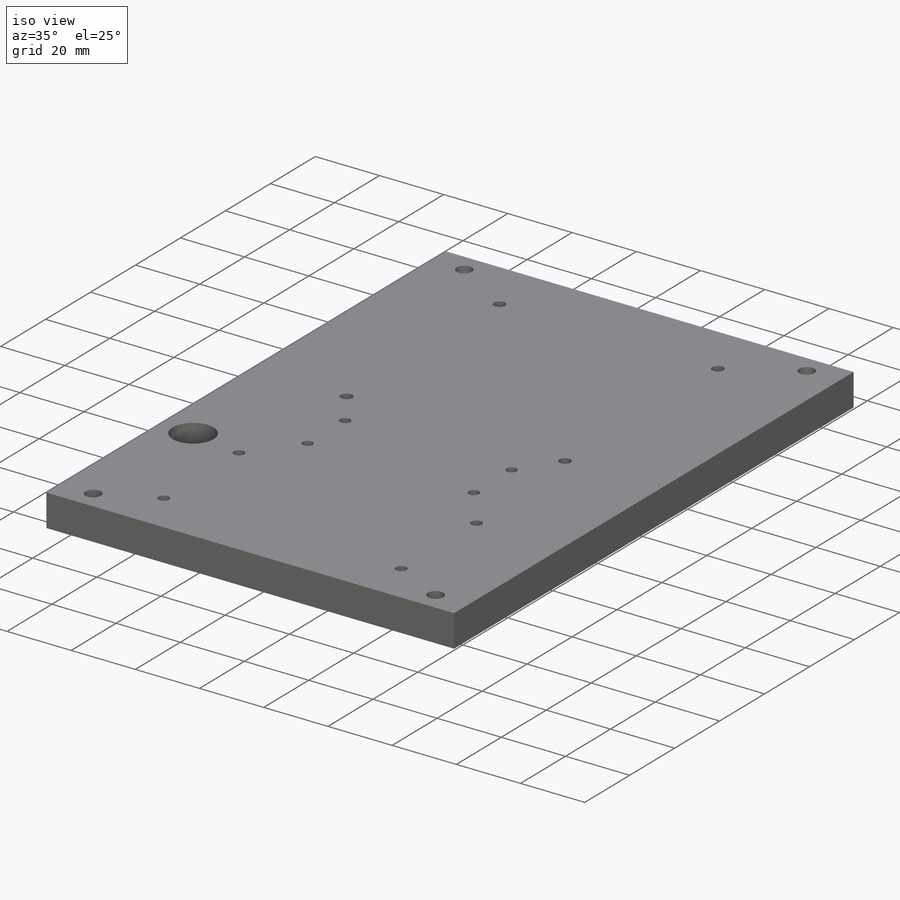
[diagram: iso view]
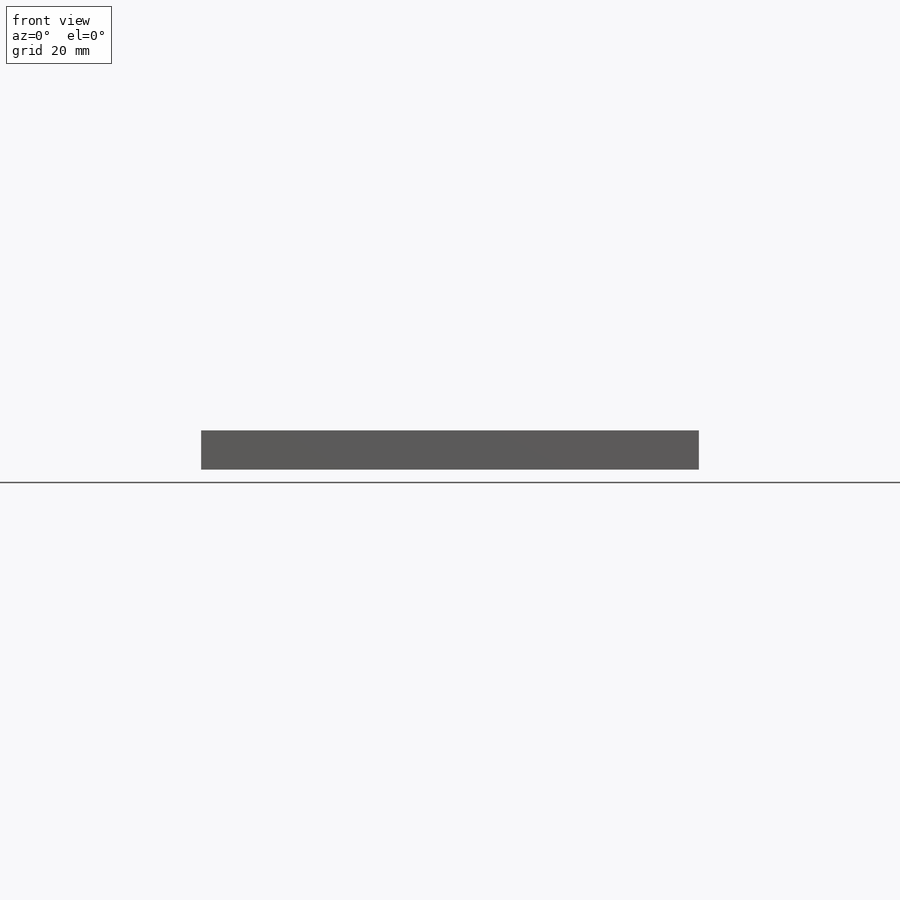
[diagram: front view]
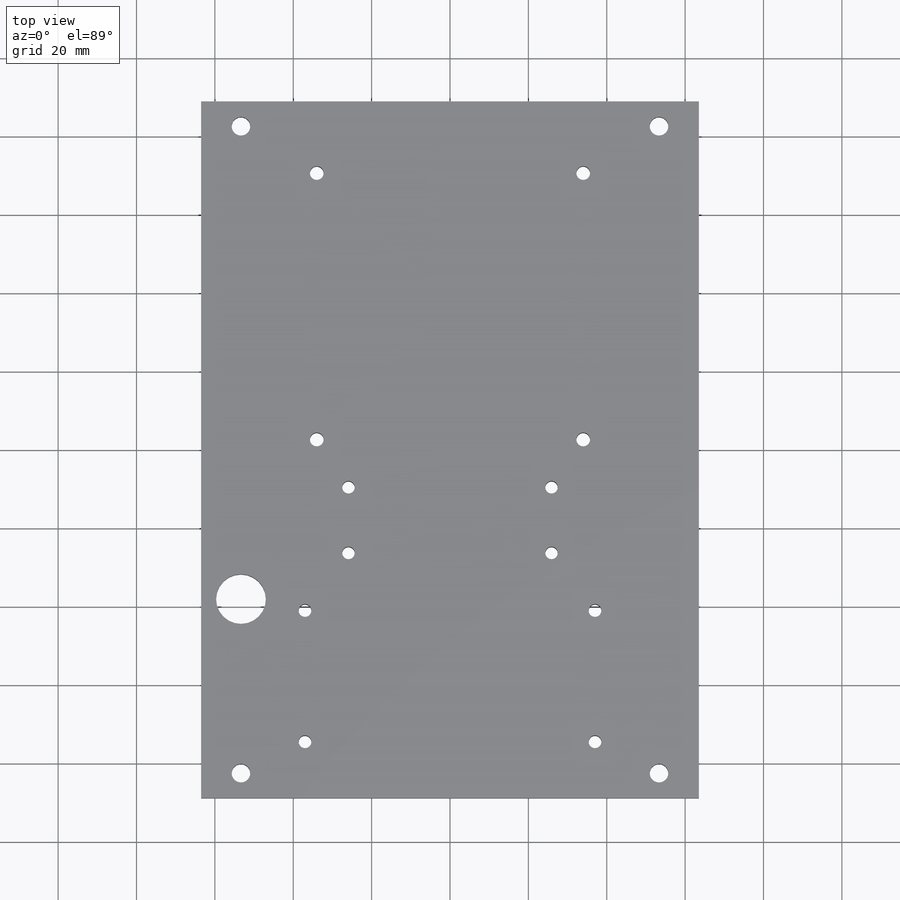
[diagram: top view]
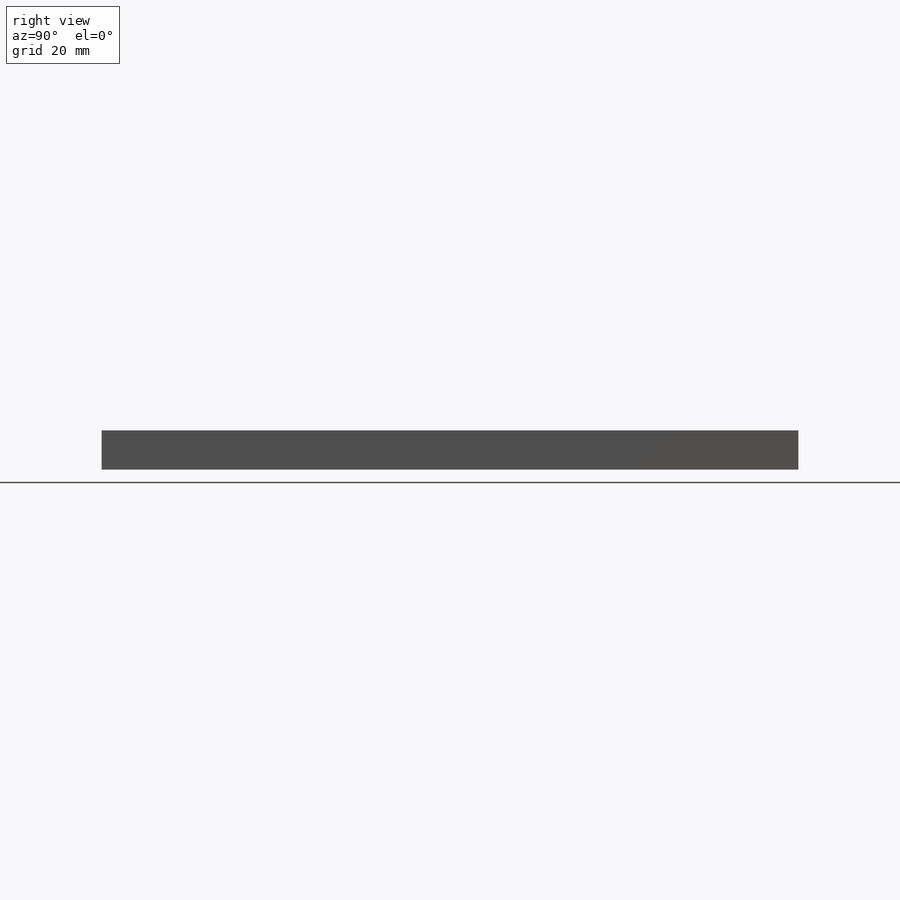
[diagram: right view]
SOLIDWORKS PART (.sldprt)
format: sldprt  version: not decoded by parser v0  size: 441,344 bytes
history: native  units: mm
features: sketch x10, cut_extrude x9, material x1, extrude x1 (+13 scaffold rows collapsed)
feature tree (34):
  scaffold x13  (default folders/planes/origin — collapsed)
  material  "Material <not specified>"
  sketch  "Sketch1"  dims[D3=4.7498mm D8=12.7mm D1=177.8mm D2=127.0mm D4=53.34mm D5=53.34mm D6=6.35mm D7=6.35mm D9=50.8mm D10=53.34mm]
  extrude  "Boss-Extrude1"  Depth=10mm
  sketch  "sensorbar"  dims[D1=3.5mm D2=10.65mm D3=95.25mm D4=2.75mm D5=4.0mm D6=2.75mm]
  cut_extrude  "senseBar"  [1 undecoded]
  sketch  "Sketch3"  dims[D1=3.25mm D2=56.35mm]
  cut_extrude  "battery pack"  Depth=10mm
  sketch  "Sketch4"  dims[D8=3.25mm D1=5.25mm D2=3.0mm D3=8.5mm D4=6.0mm D5=12.0mm D6=14.0mm D7=3.0mm]
  cut_extrude  "motor Mounts"  Depth=10mm
  sketch  "Sketch5"  dims[c1.D4=3.25mm c1.D6=3.25mm c1.D1=24.0mm c1.D2=54.3mm c1.D3=76.36mm c1.D5=5.25mm c2.D6=5.25mm c2.D7=5.25mm c2.D8=5.25mm]
  cut_extrude  "mtr_ctrl"  Depth=10mm
  sketch  "Sketch6"  dims[D7=3.25mm D1=95.3mm D2=50.81mm D3=5.0mm D4=5.0mm D5=3.25mm D6=3.25mm D8=18.5mm]
  cut_extrude  "ang_ctrl"  Depth=10mm
  sketch  "Sketch7"  dims[D4=3.25mm D1=23.5mm D2=31.0mm D3=15.0mm]
  cut_extrude  "front wheel"  Depth=10mm
  sketch  "Sketch8"  dims[c1.D1=33.5mm c1.D2=74.0mm c2.D1=33.5mm c2.D2=74.0mm c2.D3=83.7mm c2.D4=45.2mm]
  cut_extrude  "Breadboard"  Depth=10mm
  sketch  "Sketch9"  dims[D3=3.5mm D1=76.2mm D2=76.2mm D4=68.0mm]
  cut_extrude  "FPGA"  Depth=10mm
  sketch  "Sketch10"  dims[D1=3.175mm D2=3.175mm D3=3.175mm D4=3.175mm D5=57.15mm D6=23.114mm D7=25.908mm D8=25.908mm D9=25.908mm D10=25.908mm D11=8.382mm D12=8.382mm D13=8.382mm D14=8.382mm]
  cut_extrude  "8Push_btn"  Depth=10mm
decode coverage: 19 of 20 modeling features carry decoded parameters
note: 1 parameter value undecoded
note: suppression state not decoded; provenance and decode notes live in map.json
